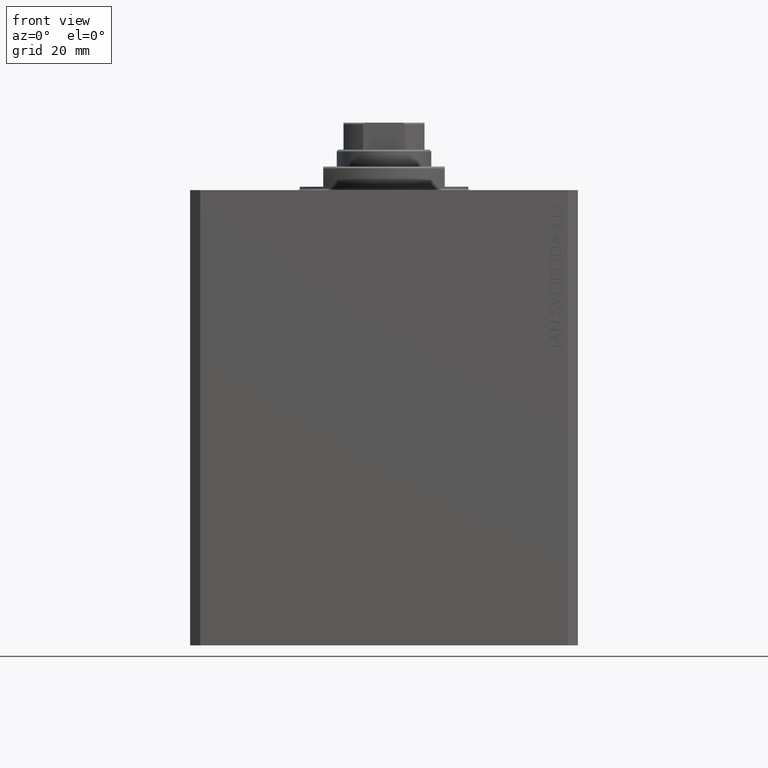
[diagram: clean part render]
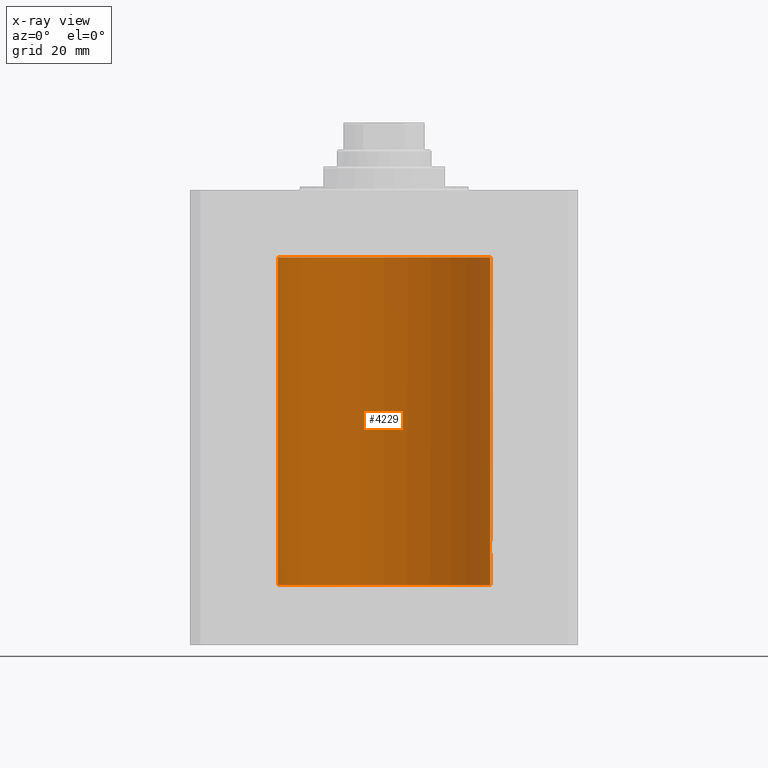
[diagram: x-ray — body ghosted, one internal face saturated and labeled with its STEP entity id]
A machine part, front view, then the same camera in x-ray: the body is ghosted and one INTERNAL B-rep face — a face not visible from any outside direction — is saturated and labeled: STEP entity #4229.
In plain terms, the highlighted cylindrical surface (partial cylindrical patch) has radius 31.5 mm, axis along (0, 0, 1).
Its self-contained STEP definition (entity closure, byte-faithful):
#780 = B_SPLINE_CURVE_WITH_KNOTS ( 'NONE', 3,
 ( #6160, #20747, #28142, #42679, #24569, #39099, #8055, #18326, #22649, #40753, #25742, #43848, #22158, #39797 ),
 .UNSPECIFIED., .F., .F.,
 ( 4, 2, 2, 2, 2, 2, 4 ),
 ( 2.056106459202125122E-18, 0.0003909946087814342034, 0.0007819892175628663468, 0.001172983826344298382, 0.001563978435125730525, 0.002345967652688565538, 0.003127956870251400769 ),
 .UNSPECIFIED. ) ;
#802 = VERTEX_POINT ( 'NONE', #45656 ) ;
#882 = CIRCLE ( 'NONE', #32913, 31.50000000000000000 ) ;
#1137 = LINE ( 'NONE', #15707, #3651 ) ;
#1385 = CARTESIAN_POINT ( 'NONE',  ( 31.50000000000000000, 0.000000000000000000, -117.0999999999999943 ) ) ;
#2069 = CARTESIAN_POINT ( 'NONE',  ( -31.50000000000000000, 1.404544281073895046E-14, -27.00000000000000000 ) ) ;
#2080 = LINE ( 'NONE', #1385, #23330 ) ;
#2774 = CARTESIAN_POINT ( 'NONE',  ( -31.45224836082999431, 1.735318303535942963, -30.00282216311122951 ) ) ;
#2838 = ORIENTED_EDGE ( 'NONE', *, *, #28935, .F. ) ;
#2895 = CARTESIAN_POINT ( 'NONE',  ( 31.48420706794360058, 1.003217712170308973, -104.2649149328429132 ) ) ;
#2912 = ORIENTED_EDGE ( 'NONE', *, *, #46194, .F. ) ;
#3132 = CARTESIAN_POINT ( 'NONE',  ( 31.44047330683569186, 1.935793094480600107, -105.4805747813049095 ) ) ;
#3242 = CARTESIAN_POINT ( 'NONE',  ( -31.49916171907896256, 0.2631371420809969219, -30.98691729972353315 ) ) ;
#3477 = CARTESIAN_POINT ( 'NONE',  ( -31.48775605676681266, 0.8865158617371076133, -30.79757944476694576 ) ) ;
#3651 = VECTOR ( 'NONE', #41241, 1000.000000000000000 ) ;
#3791 = ORIENTED_EDGE ( 'NONE', *, *, #38139, .T. ) ;
#4229 = ADVANCED_FACE ( 'NONE', ( #40692 ), #37121, .F. ) ;
#4426 = CARTESIAN_POINT ( 'NONE',  ( 0.000000000000000000, 0.000000000000000000, -117.0999999999999943 ) ) ;
#4616 = CARTESIAN_POINT ( 'NONE',  ( 0.000000000000000000, 0.000000000000000000, -20.00000000000000355 ) ) ;
#4738 = EDGE_CURVE ( 'NONE', #26221, #35822, #882, .T. ) ;
#5394 = CIRCLE ( 'NONE', #32064, 31.50000000000000000 ) ;
#5584 = DIRECTION ( 'NONE',  ( -0.000000000000000000, -0.000000000000000000, 1.000000000000000000 ) ) ;
#5795 = ORIENTED_EDGE ( 'NONE', *, *, #35333, .T. ) ;
#5882 = VERTEX_POINT ( 'NONE', #16471 ) ;
#6160 = CARTESIAN_POINT ( 'NONE',  ( 31.50000000000000000, 2.115822464172388752E-15, -108.0000000000000142 ) ) ;
#6472 = CARTESIAN_POINT ( 'NONE',  ( 31.47656038302703507, 1.219789706799899953, -104.4096921557544704 ) ) ;
#8055 = CARTESIAN_POINT ( 'NONE',  ( 31.48424227690098931, 1.002158581476552790, -107.7357332860677701 ) ) ;
#8806 = VERTEX_POINT ( 'NONE', #13416 ) ;
#9369 = CARTESIAN_POINT ( 'NONE',  ( 31.46404119587053927, 1.507594711990248637, -104.6791728524376595 ) ) ;
#9472 = ORIENTED_EDGE ( 'NONE', *, *, #44049, .T. ) ;
#9835 = CARTESIAN_POINT ( 'NONE',  ( 31.49597888575898708, 0.5193621964009169645, -104.0641961002934863 ) ) ;
#10067 = CARTESIAN_POINT ( 'NONE',  ( 31.49364883223205425, 0.6440257487116619606, -104.1019945078124209 ) ) ;
#10176 = CARTESIAN_POINT ( 'NONE',  ( -31.43727648790974172, 1.987033456253953112, -29.26230567213424294 ) ) ;
#10882 = CARTESIAN_POINT ( 'NONE',  ( -31.50000000000000000, 0.1305468079557566274, -31.00000000000000000 ) ) ;
#11057 = CARTESIAN_POINT ( 'NONE',  ( -31.50000000000000000, 3.857637408943224358E-15, -30.99999999999999645 ) ) ;
#11479 = EDGE_CURVE ( 'NONE', #5882, #26221, #2080, .T. ) ;
#12093 = CARTESIAN_POINT ( 'NONE',  ( -31.50000000000000000, 3.857637417314161900E-15, -117.0999999999999943 ) ) ;
#12481 = DIRECTION ( 'NONE',  ( 0.000000000000000000, 0.000000000000000000, 1.000000000000000000 ) ) ;
#12836 = CARTESIAN_POINT ( 'NONE',  ( -31.48773989768473314, 0.8870801819049328740, -27.20270307449469627 ) ) ;
#13180 = CARTESIAN_POINT ( 'NONE',  ( 31.49916210907646175, 0.2630769646869197675, -104.0130766648357650 ) ) ;
#13414 = CARTESIAN_POINT ( 'NONE',  ( 31.45226167581968113, 1.735077252816683346, -104.9967648169954941 ) ) ;
#13416 = CARTESIAN_POINT ( 'NONE',  ( -31.50000000000000000, 3.857637417314161900E-15, -117.0999999999999943 ) ) ;
#13470 = CARTESIAN_POINT ( 'NONE',  ( 31.50000000000000000, 2.115822464172388752E-15, -108.0000000000000142 ) ) ;
#13646 = CARTESIAN_POINT ( 'NONE',  ( 31.45991621267056004, 1.590260824275570029, -104.7801457396744951 ) ) ;
#14412 = CARTESIAN_POINT ( 'NONE',  ( -31.50000000000000000, 3.857637417314161900E-15, -20.00000000000000355 ) ) ;
#15707 = CARTESIAN_POINT ( 'NONE',  ( -31.50000000000000000, 3.857637417314161900E-15, -117.0999999999999943 ) ) ;
#16004 = CARTESIAN_POINT ( 'NONE',  ( 31.50000000000000000, 0.000000000000000000, -117.0999999999999943 ) ) ;
#16057 = CARTESIAN_POINT ( 'NONE',  ( -31.50000000000000000, 1.404544281073895046E-14, -27.00000000000000000 ) ) ;
#16471 = CARTESIAN_POINT ( 'NONE',  ( 31.50000000000000000, -8.369814204394935255E-24, -104.0000000000000142 ) ) ;
#17341 = CARTESIAN_POINT ( 'NONE',  ( -31.45990328919313939, 1.590516142808641620, -30.21952462249807425 ) ) ;
#17810 = CARTESIAN_POINT ( 'NONE',  ( -31.47655123270017086, 1.220027114947935143, -30.59012812369856960 ) ) ;
#18046 = CARTESIAN_POINT ( 'NONE',  ( -31.49364602877929897, 0.6441674297269992522, -30.89795957697708317 ) ) ;
#18326 = CARTESIAN_POINT ( 'NONE',  ( 31.47656968928225751, 1.219587704424720975, -107.5905023401450649 ) ) ;
#18705 = VERTEX_POINT ( 'NONE', #13470 ) ;
#18798 = VERTEX_POINT ( 'NONE', #11057 ) ;
#19195 = DIRECTION ( 'NONE',  ( 1.000000000000000000, 0.000000000000000000, 0.000000000000000000 ) ) ;
#19557 = ORIENTED_EDGE ( 'NONE', *, *, #34312, .F. ) ;
#20533 = DIRECTION ( 'NONE',  ( 0.000000000000000000, 0.000000000000000000, 1.000000000000000000 ) ) ;
#20747 = CARTESIAN_POINT ( 'NONE',  ( 31.50000000000000000, 0.1322106156816646727, -108.0000000000000426 ) ) ;
#20939 = CARTESIAN_POINT ( 'NONE',  ( -31.47237164446476498, 1.322250186170389030, -27.49378908604442984 ) ) ;
#21059 = CARTESIAN_POINT ( 'NONE',  ( 31.44280827872263018, 1.897980201673372669, -105.3559202626804563 ) ) ;
#21412 = CARTESIAN_POINT ( 'NONE',  ( -31.44046365243112362, 1.935949445030092253, -29.51885062223535172 ) ) ;
#22158 = CARTESIAN_POINT ( 'NONE',  ( 31.43644381923627762, 2.000000000000390799, -106.2610318865086043 ) ) ;
#22649 = CARTESIAN_POINT ( 'NONE',  ( 31.47236118406705074, 1.322499398534438209, -107.5059945699082249 ) ) ;
#22875 = VECTOR ( 'NONE', #33446, 1000.000000000000000 ) ;
#23330 = VECTOR ( 'NONE', #23601, 1000.000000000000000 ) ;
#23359 = CARTESIAN_POINT ( 'NONE',  ( -31.50000000000001421, 0.1321804137546035152, -27.00000000000000355 ) ) ;
#23580 = ORIENTED_EDGE ( 'NONE', *, *, #4738, .T. ) ;
#23601 = DIRECTION ( 'NONE',  ( -0.000000000000000000, -0.000000000000000000, 1.000000000000000000 ) ) ;
#23948 = CARTESIAN_POINT ( 'NONE',  ( 31.48776132734998967, 0.8863252928784765006, -104.2023288708492998 ) ) ;
#23980 = DIRECTION ( 'NONE',  ( 1.000000000000000000, 0.000000000000000000, 0.000000000000000000 ) ) ;
#24415 = CARTESIAN_POINT ( 'NONE',  ( 31.43728213781475489, 1.986944500966173477, -105.7370380017273419 ) ) ;
#24531 = CARTESIAN_POINT ( 'NONE',  ( -31.44279716593210949, 1.898163692853222839, -29.64354408641193928 ) ) ;
#24569 = CARTESIAN_POINT ( 'NONE',  ( 31.49362851683618203, 0.6450141649083152018, -107.8976700761137550 ) ) ;
#25742 = CARTESIAN_POINT ( 'NONE',  ( 31.45161214644910075, 1.748160858796787398, -107.0059024499660723 ) ) ;
#25799 = ORIENTED_EDGE ( 'NONE', *, *, #35650, .T. ) ;
#26221 = VERTEX_POINT ( 'NONE', #33491 ) ;
#27079 = B_SPLINE_CURVE_WITH_KNOTS ( 'NONE', 3,
 ( #2069, #23359, #27646, #42178, #45518, #12836, #41935, #38368, #20939, #39763, #36182, #42640, #35482, #42877, #10176, #21412, #24531, #39294, #2774, #17341, #31682, #35716, #17810, #47153, #3477, #18046, #28559, #3242, #10882, #35951 ),
 .UNSPECIFIED., .F., .F.,
 ( 4, 2, 2, 2, 2, 2, 2, 2, 2, 2, 2, 2, 2, 2, 4 ),
 ( 1.275280284162000984E-19, 0.0003909052907595646307, 0.0007818105815191291530, 0.001172715872278693892, 0.001563621163038258306, 0.002345431744557394289, 0.003127242326076530923, 0.003518147616836098807, 0.003909052907595666690, 0.004299958198355234573, 0.004690863489114802456, 0.005081768779874371207, 0.005472674070633939090, 0.005863579361393506974, 0.006254484652153075724 ),
 .UNSPECIFIED. ) ;
#27240 = VERTEX_POINT ( 'NONE', #16057 ) ;
#27267 = VECTOR ( 'NONE', #37628, 1000.000000000000000 ) ;
#27646 = CARTESIAN_POINT ( 'NONE',  ( -31.49916865039980607, 0.2621451228717639470, -27.01297480444316079 ) ) ;
#28142 = CARTESIAN_POINT ( 'NONE',  ( 31.49916827061298363, 0.2622045237009018037, -107.9870193222188561 ) ) ;
#28559 = CARTESIAN_POINT ( 'NONE',  ( -31.49597709302052451, 0.5194777340345928529, -30.93577488239865758 ) ) ;
#28935 = EDGE_CURVE ( 'NONE', #8806, #18798, #45710, .T. ) ;
#30648 = CARTESIAN_POINT ( 'NONE',  ( 31.43644381923627051, 2.000000000000389910, -106.0000000000000142 ) ) ;
#31682 = CARTESIAN_POINT ( 'NONE',  ( -31.46402885784291925, 1.507852291435627157, -30.32053570646255380 ) ) ;
#31799 = CARTESIAN_POINT ( 'NONE',  ( 31.47243113015943550, 1.320912165297395413, -104.4924797776056664 ) ) ;
#32026 = CARTESIAN_POINT ( 'NONE',  ( 31.50000000000000711, 0.1305169792915977789, -104.0000000000000284 ) ) ;
#32064 = AXIS2_PLACEMENT_3D ( 'NONE', #38886, #20533, #35542 ) ;
#32913 = AXIS2_PLACEMENT_3D ( 'NONE', #4616, #12481, #19195 ) ;
#33446 = DIRECTION ( 'NONE',  ( -0.000000000000000000, -0.000000000000000000, 1.000000000000000000 ) ) ;
#33491 = CARTESIAN_POINT ( 'NONE',  ( 31.50000000000000000, 0.000000000000000000, -20.00000000000000355 ) ) ;
#34312 = EDGE_CURVE ( 'NONE', #27240, #35822, #1137, .T. ) ;
#35333 = EDGE_CURVE ( 'NONE', #46534, #5882, #39651, .T. ) ;
#35482 = CARTESIAN_POINT ( 'NONE',  ( -31.43644976744935349, 1.999906504661145057, -28.73831721771798087 ) ) ;
#35542 = DIRECTION ( 'NONE',  ( 1.000000000000000000, 0.000000000000000000, 0.000000000000000000 ) ) ;
#35650 = EDGE_CURVE ( 'NONE', #27240, #18798, #27079, .T. ) ;
#35716 = CARTESIAN_POINT ( 'NONE',  ( -31.47242045906136454, 1.321166510329244037, -30.50729961746649721 ) ) ;
#35822 = VERTEX_POINT ( 'NONE', #14412 ) ;
#35951 = CARTESIAN_POINT ( 'NONE',  ( -31.50000000000000000, 3.857637408943224358E-15, -30.99999999999999645 ) ) ;
#36028 = ORIENTED_EDGE ( 'NONE', *, *, #11479, .T. ) ;
#36182 = CARTESIAN_POINT ( 'NONE',  ( -31.45162599326494757, 1.747914105633341375, -27.99368423768024527 ) ) ;
#37121 = CYLINDRICAL_SURFACE ( 'NONE', #43561, 31.50000000000000000 ) ;
#37508 = LINE ( 'NONE', #16004, #22875 ) ;
#37628 = DIRECTION ( 'NONE',  ( -0.000000000000000000, -0.000000000000000000, 1.000000000000000000 ) ) ;
#38139 = EDGE_CURVE ( 'NONE', #802, #18705, #37508, .T. ) ;
#38297 = EDGE_LOOP ( 'NONE', ( #2838, #2912, #3791, #9472, #5795, #36028, #23580, #19557, #25799 ) ) ;
#38368 = CARTESIAN_POINT ( 'NONE',  ( -31.47657892357849718, 1.219347894895177253, -27.40931637798618681 ) ) ;
#38479 = CARTESIAN_POINT ( 'NONE',  ( 31.43644381923627051, 2.000000000000389466, -105.8695436863446844 ) ) ;
#38715 = CARTESIAN_POINT ( 'NONE',  ( 31.43644381923627051, 2.000000000000389910, -106.0000000000000142 ) ) ;
#38886 = CARTESIAN_POINT ( 'NONE',  ( 0.000000000000000000, 0.000000000000000000, -117.0999999999999943 ) ) ;
#39099 = CARTESIAN_POINT ( 'NONE',  ( 31.48773468680478160, 0.8872681233992107952, -107.7972062396702597 ) ) ;
#39294 = CARTESIAN_POINT ( 'NONE',  ( -31.44868630248347330, 1.797956860106296073, -29.88573445525094385 ) ) ;
#39651 = B_SPLINE_CURVE_WITH_KNOTS ( 'NONE', 3,
 ( #38715, #38479, #24415, #3132, #21059, #42291, #13414, #13646, #9369, #31799, #6472, #2895, #23948, #10067, #9835, #13180, #32026, #42996 ),
 .UNSPECIFIED., .F., .F.,
 ( 4, 2, 2, 2, 2, 2, 2, 2, 4 ),
 ( 0.003127956870251400769, 0.003518772842989208258, 0.003909588815727015748, 0.004300404788464823672, 0.004691220761202631595, 0.005082036733940438651, 0.005472852706678246575, 0.005863668679416053631, 0.006254484652153861554 ),
 .UNSPECIFIED. ) ;
#39763 = CARTESIAN_POINT ( 'NONE',  ( -31.45993541206224720, 1.598922699014384774, -27.77056366933357978 ) ) ;
#39797 = CARTESIAN_POINT ( 'NONE',  ( 31.43644381923627051, 2.000000000000389910, -106.0000000000000142 ) ) ;
#40692 = FACE_OUTER_BOUND ( 'NONE', #38297, .T. ) ;
#40753 = CARTESIAN_POINT ( 'NONE',  ( 31.45992223434330981, 1.599182806012580782, -107.2291100714819265 ) ) ;
#41241 = DIRECTION ( 'NONE',  ( -0.000000000000000000, -0.000000000000000000, 1.000000000000000000 ) ) ;
#41935 = CARTESIAN_POINT ( 'NONE',  ( -31.48424881603012437, 1.001951351791706024, -27.26414944111796146 ) ) ;
#42178 = CARTESIAN_POINT ( 'NONE',  ( -31.49600294595510164, 0.5178263803265125143, -27.06380656104274607 ) ) ;
#42291 = CARTESIAN_POINT ( 'NONE',  ( 31.44869941755756315, 1.797728078038228094, -105.1138051504310056 ) ) ;
#42640 = CARTESIAN_POINT ( 'NONE',  ( -31.43990583976198039, 1.947383405442052906, -28.47504952007440693 ) ) ;
#42679 = CARTESIAN_POINT ( 'NONE',  ( 31.49600115550921231, 0.5179422407981759680, -107.9361644646872236 ) ) ;
#42877 = CARTESIAN_POINT ( 'NONE',  ( -31.43644085734511506, 2.000046555665927706, -29.12976806868836377 ) ) ;
#42996 = CARTESIAN_POINT ( 'NONE',  ( 31.50000000000000000, -8.369814204394935255E-24, -104.0000000000000142 ) ) ;
#43561 = AXIS2_PLACEMENT_3D ( 'NONE', #4426, #5584, #23980 ) ;
#43848 = CARTESIAN_POINT ( 'NONE',  ( 31.43989559156921842, 1.947546710638703438, -106.5243738522823662 ) ) ;
#44049 = EDGE_CURVE ( 'NONE', #18705, #46534, #780, .T. ) ;
#45518 = CARTESIAN_POINT ( 'NONE',  ( -31.49363138352033431, 0.6448700584747273368, -27.10228292539639483 ) ) ;
#45656 = CARTESIAN_POINT ( 'NONE',  ( 31.50000000000000000, 0.000000000000000000, -117.0999999999999943 ) ) ;
#45710 = LINE ( 'NONE', #12093, #27267 ) ;
#46194 = EDGE_CURVE ( 'NONE', #802, #8806, #5394, .T. ) ;
#46534 = VERTEX_POINT ( 'NONE', #30648 ) ;
#47153 = CARTESIAN_POINT ( 'NONE',  ( -31.48420048909751756, 1.003425746290474319, -30.73496696875380607 ) ) ;